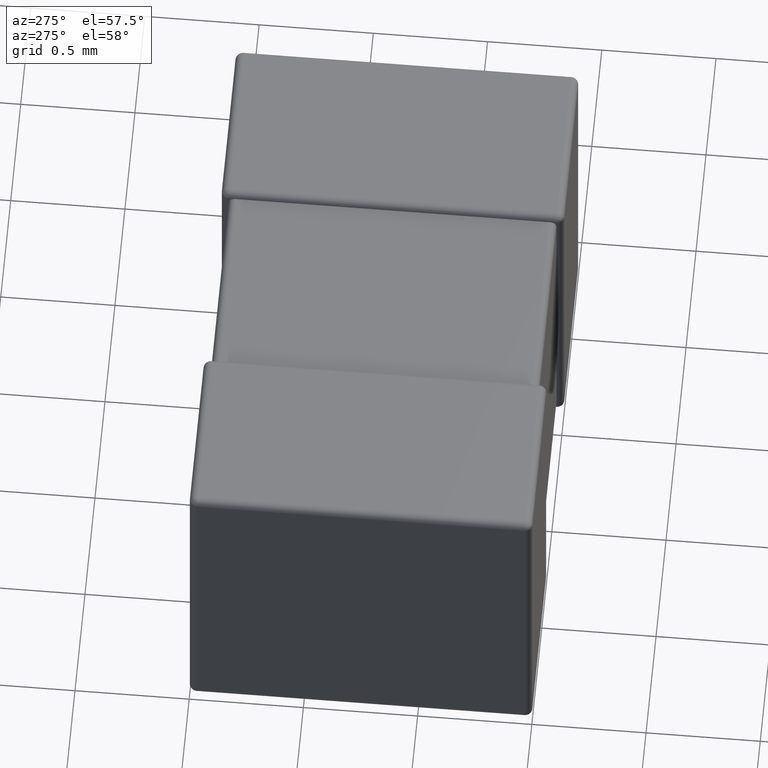
[diagram: clean part render]
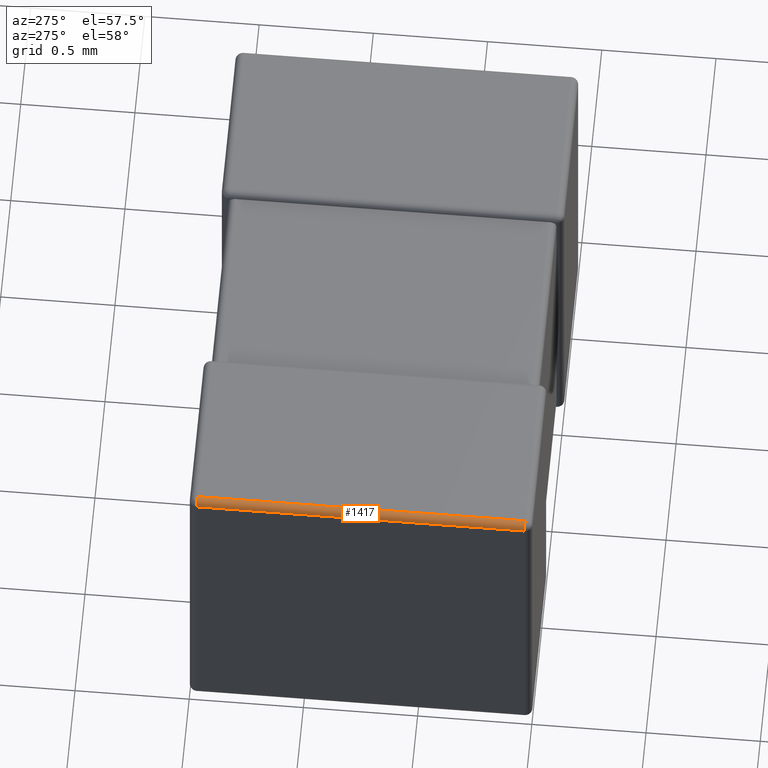
[diagram: same view with one face highlighted and labeled with its STEP entity id]
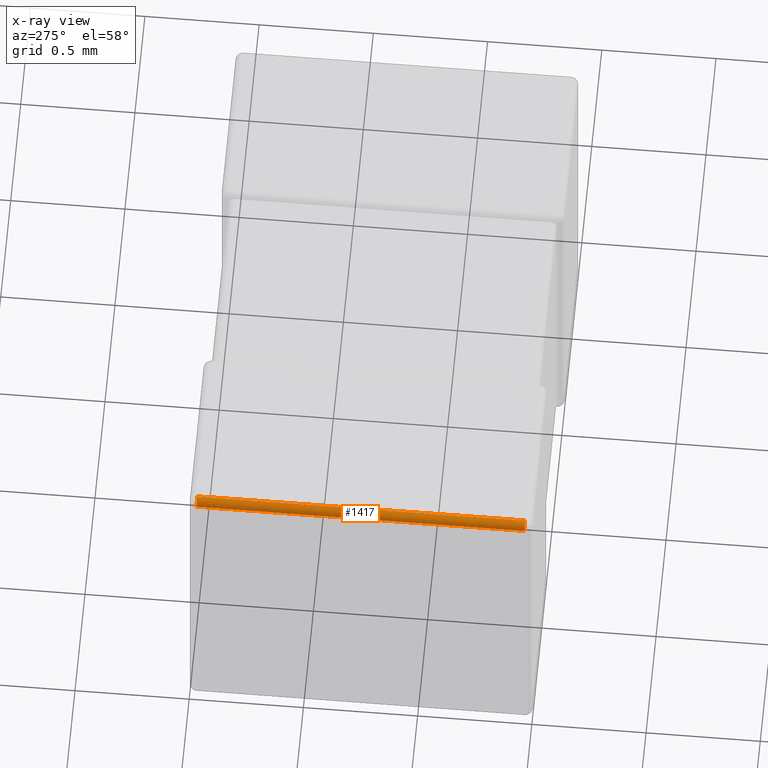
[diagram: x-ray of the same camera — body ghosted, the highlighted face saturated]
A machine part, auxiliary view. The second image highlights one B-rep face of the part: STEP entity #1417.
The next image is the same camera in x-ray: the body ghosted, the highlighted face saturated — about 0% of this face is hidden behind the body in this view.
In plain terms, the highlighted cylindrical surface (edge-blend (fillet) strip) has radius 0.0322 mm, axis along (0, 1, 0).
Its self-contained STEP definition (entity closure, byte-faithful):
#144 = EDGE_LOOP ( 'NONE', ( #1272, #798, #3279, #1062 ) ) ;
#341 = VERTEX_POINT ( 'NONE', #2200 ) ;
#529 = CYLINDRICAL_SURFACE ( 'NONE', #2871, 0.03223999999999999783 ) ;
#595 = FACE_OUTER_BOUND ( 'NONE', #144, .T. ) ;
#616 = LINE ( 'NONE', #3081, #1598 ) ;
#622 = DIRECTION ( 'NONE',  ( -6.305456183034494291E-15, 0.000000000000000000, 1.000000000000000000 ) ) ;
#674 = VERTEX_POINT ( 'NONE', #4323 ) ;
#734 = CIRCLE ( 'NONE', #3749, 0.03223999999999999783 ) ;
#798 = ORIENTED_EDGE ( 'NONE', *, *, #3271, .F. ) ;
#1038 = EDGE_CURVE ( 'NONE', #341, #4095, #2516, .T. ) ;
#1062 = ORIENTED_EDGE ( 'NONE', *, *, #1038, .F. ) ;
#1272 = ORIENTED_EDGE ( 'NONE', *, *, #2065, .T. ) ;
#1311 = CARTESIAN_POINT ( 'NONE',  ( 0.03223999999999999783, 1.467759999999999954, -0.03223999999999999783 ) ) ;
#1361 = DIRECTION ( 'NONE',  ( 0.000000000000000000, 1.000000000000000000, 0.000000000000000000 ) ) ;
#1417 = ADVANCED_FACE ( 'NONE', ( #595 ), #529, .T. ) ;
#1598 = VECTOR ( 'NONE', #2456, 1000.000000000000000 ) ;
#1629 = VERTEX_POINT ( 'NONE', #3545 ) ;
#1700 = DIRECTION ( 'NONE',  ( 0.000000000000000000, 0.000000000000000000, -1.000000000000000000 ) ) ;
#1808 = CARTESIAN_POINT ( 'NONE',  ( 0.03223999999999978272, 0.000000000000000000, 0.000000000000000000 ) ) ;
#2065 = EDGE_CURVE ( 'NONE', #341, #674, #4142, .T. ) ;
#2143 = DIRECTION ( 'NONE',  ( 0.000000000000000000, 0.000000000000000000, 1.000000000000000000 ) ) ;
#2160 = CARTESIAN_POINT ( 'NONE',  ( 0.03223999999999978272, 0.000000000000000000, -0.03223999999999999783 ) ) ;
#2200 = CARTESIAN_POINT ( 'NONE',  ( 0.03223999999999978272, 1.467759999999999954, 0.000000000000000000 ) ) ;
#2456 = DIRECTION ( 'NONE',  ( -0.000000000000000000, 1.000000000000000000, -0.000000000000000000 ) ) ;
#2516 = LINE ( 'NONE', #1808, #4512 ) ;
#2526 = CARTESIAN_POINT ( 'NONE',  ( 0.03223999999999978272, 0.03223999999999999089, -0.03223999999999999783 ) ) ;
#2871 = AXIS2_PLACEMENT_3D ( 'NONE', #2160, #1361, #2143 ) ;
#2911 = DIRECTION ( 'NONE',  ( 0.000000000000000000, -1.000000000000000000, 0.000000000000000000 ) ) ;
#2977 = CARTESIAN_POINT ( 'NONE',  ( 0.03223999999999978272, 0.03223999999999999089, 0.000000000000000000 ) ) ;
#3081 = CARTESIAN_POINT ( 'NONE',  ( 0.000000000000000000, 1.500000000000000000, -0.03223999999999999783 ) ) ;
#3180 = AXIS2_PLACEMENT_3D ( 'NONE', #1311, #3862, #622 ) ;
#3271 = EDGE_CURVE ( 'NONE', #1629, #674, #616, .T. ) ;
#3279 = ORIENTED_EDGE ( 'NONE', *, *, #4506, .F. ) ;
#3545 = CARTESIAN_POINT ( 'NONE',  ( 0.000000000000000000, 0.03223999999999999089, -0.03223999999999999783 ) ) ;
#3749 = AXIS2_PLACEMENT_3D ( 'NONE', #2526, #4307, #1700 ) ;
#3862 = DIRECTION ( 'NONE',  ( -0.000000000000000000, -1.000000000000000000, -0.000000000000000000 ) ) ;
#4095 = VERTEX_POINT ( 'NONE', #2977 ) ;
#4142 = CIRCLE ( 'NONE', #3180, 0.03223999999999999783 ) ;
#4307 = DIRECTION ( 'NONE',  ( 0.000000000000000000, -1.000000000000000000, 0.000000000000000000 ) ) ;
#4323 = CARTESIAN_POINT ( 'NONE',  ( 0.000000000000000000, 1.467759999999999954, -0.03223999999999999783 ) ) ;
#4506 = EDGE_CURVE ( 'NONE', #4095, #1629, #734, .T. ) ;
#4512 = VECTOR ( 'NONE', #2911, 1000.000000000000000 ) ;